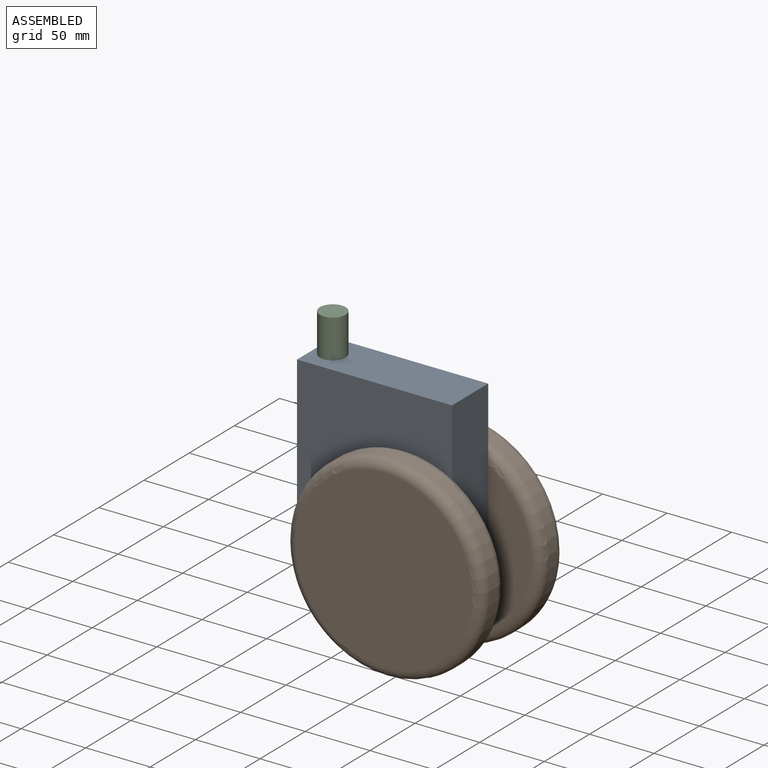
[diagram: assembled view]
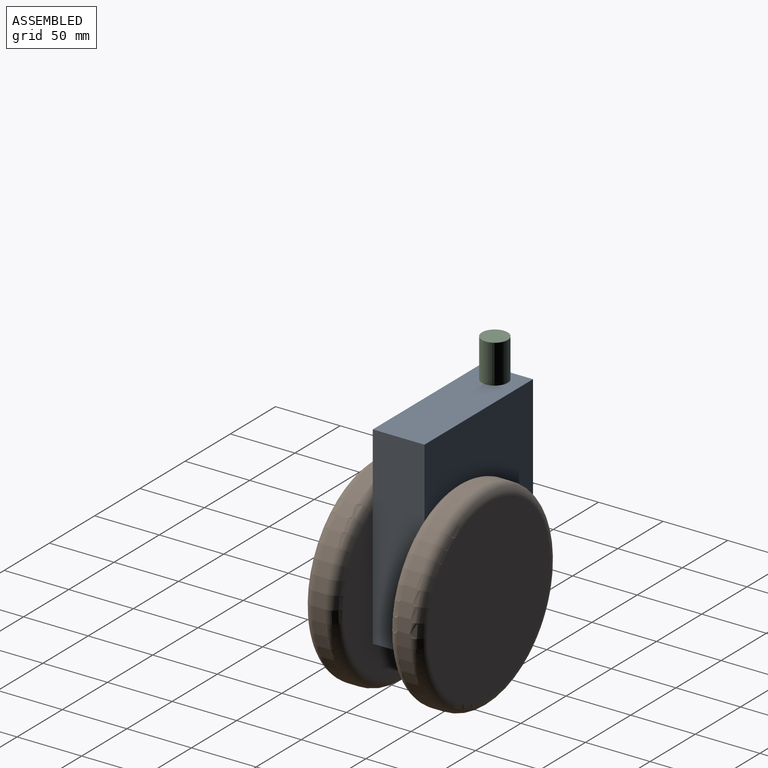
[diagram: assembled view, second angle]
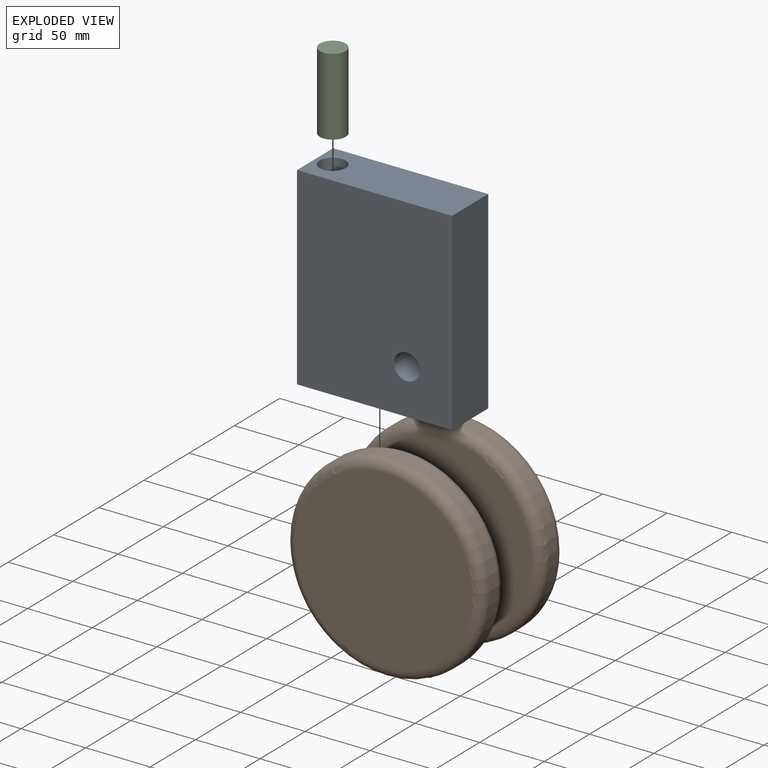
[diagram: exploded view]
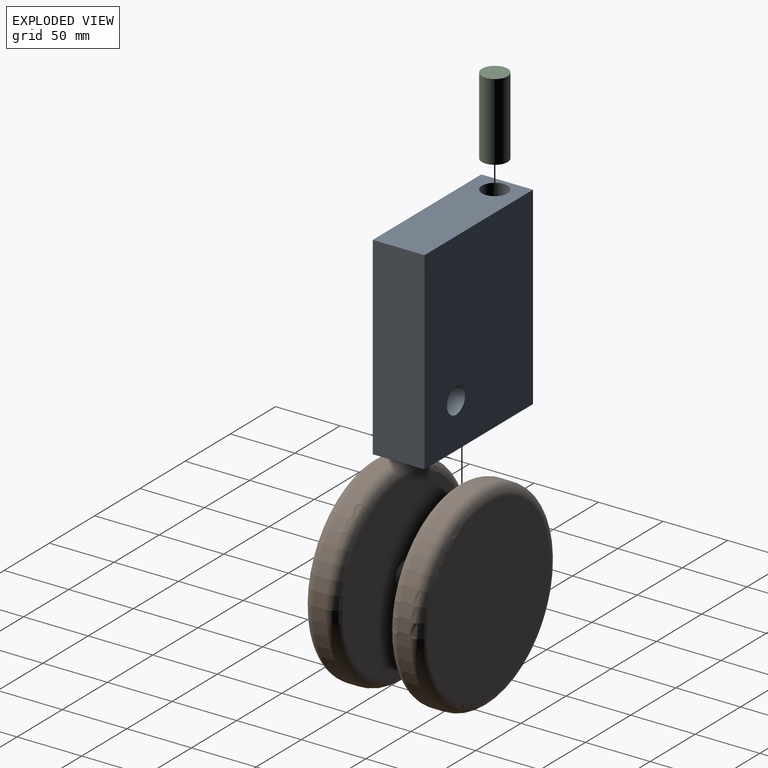
[diagram: exploded view, second angle]
ASSEMBLY  parts=3 mates=2
PART A: 9 faces, bbox 120x40x150 mm
  f0: plane 150x120mm, normal (0,-1,0), area 17685.8mm2, adj f1,f2,f3,f4,f5
  f1: plane 120x40mm, normal (0,0,-1), area 4800mm2, adj f0,f2,f4,f6
  f2: plane 150x40mm, normal (1,0,0), area 6000mm2, adj f0,f1,f3,f6
  f3: plane 120x40mm, normal (0,0,1), area 4485.8mm2, adj f0,f2,f4,f6,f7
  f4: plane 150x40mm, normal (-1,0,0), area 6000mm2, adj f0,f1,f3,f6
  f5: cylinder r=10mm len=40mm, axis (0,1,0), area 2513.3mm2, adj f0,f6
  f6: plane 150x120mm, normal (0,1,0), area 17685.8mm2, adj f1,f2,f3,f4,f5
  f7: cylinder r=10mm len=30mm, axis (0,0,1), area 1885mm2, adj f3,f8
  f8: plane 20x20mm, normal (0,0,1), area 314.2mm2, adj f7
PART B: 11 faces, bbox 165x90.8x165 mm
  f0: cylinder r=76.2mm len=152.4mm, axis (0,1,0), area 4500.5mm2, adj f3,f4
  f1: plane 136.4x136.4mm, normal (0,-1,0), area 14298.1mm2, adj f4,f5
  f2: plane 136.4x136.4mm, normal (0,1,0), area 14612.3mm2, adj f3
  f3: torus R=68.2mm, axis (0,-1,0), area 5787mm2, adj f0,f2
  f4: torus R=68.2mm, axis (0,-1,0), area 5787mm2, adj f0,f1
  f5: cylinder r=10mm len=40mm, axis (0,1,0), area 2513.3mm2, adj f1,f7
  f6: cylinder r=76.2mm len=152.4mm, axis (0,-1,0), area 4500.5mm2, adj f9,f10
  f7: plane 136.4x136.4mm, normal (0,1,0), area 14298.1mm2, adj f5,f10
  f8: plane 136.4x136.4mm, normal (0,-1,0), area 14612.3mm2, adj f9
  f9: torus R=68.2mm, axis (0,1,0), area 5787mm2, adj f6,f8
  f10: torus R=68.2mm, axis (0,1,0), area 5787mm2, adj f6,f7
PART C: 3 faces, bbox 20x20x60 mm
  f0: cylinder r=10mm len=60mm, axis (0,0,-1), area 3769.9mm2, adj f1,f2
  f1: plane 20x20mm, normal (0,0,1), area 314.2mm2, adj f0
  f2: plane 20x20mm, normal (0,0,-1), area 314.2mm2, adj f0
PLACE A t=(1.11,76.08,-0.54)mm
PLACE B t=(1.11,76.08,-0.54)mm fixed
PLACE C t=(1.11,76.08,-30.54)mm
MATE revolute C.f0 <-> A.f7  axis (0,0,-1) through (-70.24,30.68,84.46)mm
MATE revolute A.f5 <-> B.f5  axis (0,1,0) through (1.11,30.68,-0.54)mm
